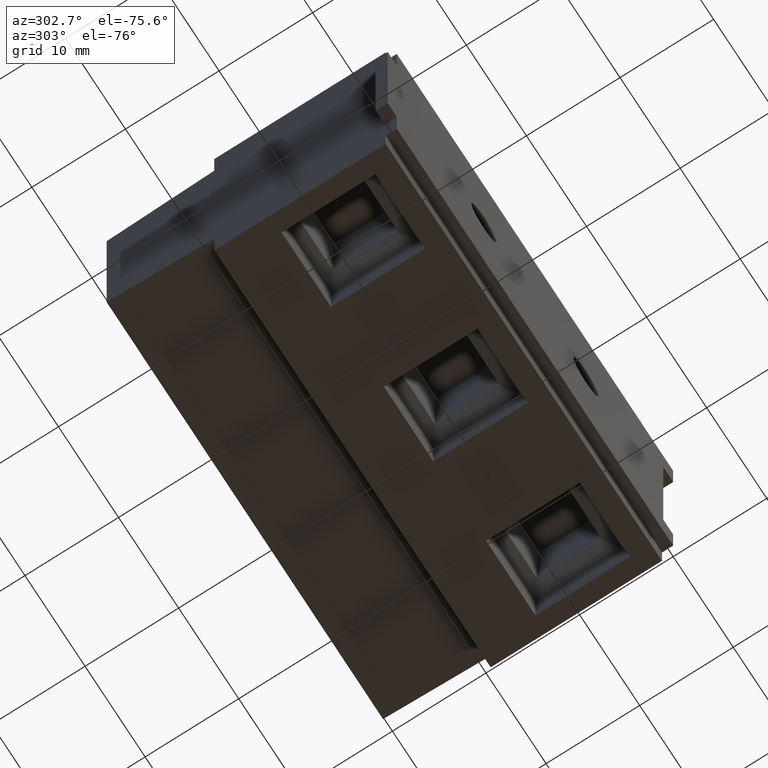
[diagram: clean part render]
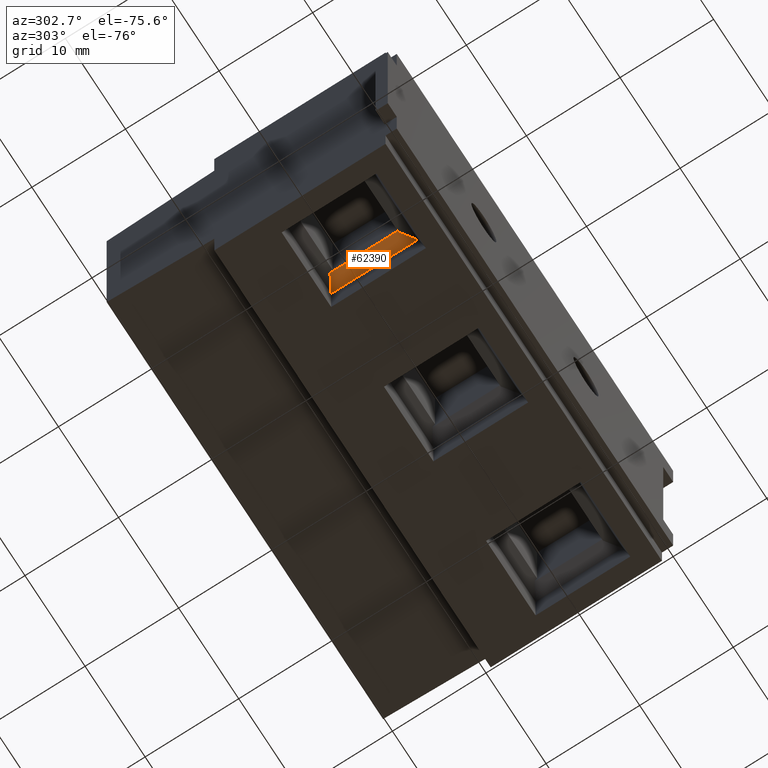
[diagram: same view with one face highlighted and labeled with its STEP entity id]
A machine part, auxiliary view. The second image highlights one B-rep face of the part: STEP entity #62390.
In plain terms, the highlighted planar face has unit normal (-0.7071, 0, -0.7071).
Its self-contained STEP definition (entity closure, byte-faithful):
#60680=CARTESIAN_POINT('',(-208.459574468087,112.275531914894,
-4.22499999999998));
#60690=DIRECTION('',(0.577350269189626,0.577350269189626,
0.577350269189626));
#60700=VECTOR('',#60690,1.);
#60710=LINE('',#60680,#60700);
#60720=CARTESIAN_POINT('',(-195.409574468087,125.325531914894,
8.82500000000001));
#60730=VERTEX_POINT('',#60720);
#60740=CARTESIAN_POINT('',(-194.134574468087,126.600531914894,10.1));
#60750=VERTEX_POINT('',#60740);
#60760=EDGE_CURVE('',#60730,#60750,#60710,.T.);
#61650=CARTESIAN_POINT('',(-195.409574468087,125.225531914894,
8.72500000000001));
#61660=VERTEX_POINT('',#61650);
#61690=CARTESIAN_POINT('',(-206.409574468087,125.225531914894,
8.72500000000001));
#61700=DIRECTION('',(1.,0.,0.));
#61710=VECTOR('',#61700,1.);
#61720=LINE('',#61690,#61710);
#61730=CARTESIAN_POINT('',(-202.645743445212,125.225531914894,
8.72500000000001));
#61740=VERTEX_POINT('',#61730);
#61750=EDGE_CURVE('',#61740,#61660,#61720,.T.);
#62020=CARTESIAN_POINT('',(-203.409574468087,125.225531914894,
8.72500000000001));
#62030=DIRECTION('',(0.,0.707106781186548,-0.707106781186548));
#62040=DIRECTION('',(-0.,-0.707106781186548,-0.707106781186548));
#62050=AXIS2_PLACEMENT_3D('',#62020,#62030,#62040);
#62060=PLANE('',#62050);
#62070=CARTESIAN_POINT('',(-208.459574468087,126.600531914894,10.1));
#62080=DIRECTION('',(1.,0.,0.));
#62090=VECTOR('',#62080,1.);
#62100=LINE('',#62070,#62090);
#62110=CARTESIAN_POINT('',(-203.409574468087,126.600531914894,10.1));
#62120=VERTEX_POINT('',#62110);
#62130=EDGE_CURVE('',#62120,#60750,#62100,.T.);
#62140=ORIENTED_EDGE('',*,*,#62130,.T.);
#62150=CARTESIAN_POINT('',(-203.409574468087,131.425531914894,14.925));
#62160=DIRECTION('',(-0.,-0.707106781186548,-0.707106781186548));
#62170=VECTOR('',#62160,1.);
#62180=LINE('',#62150,#62170);
#62190=CARTESIAN_POINT('',(-203.409574468087,126.548526054911,
10.0479941400173));
#62200=VERTEX_POINT('',#62190);
#62210=EDGE_CURVE('',#62120,#62200,#62180,.T.);
#62220=ORIENTED_EDGE('',*,*,#62210,.F.);
#62230=CARTESIAN_POINT('',(-196.150552916829,113.975531914894,
-2.52499999999999));
#62240=DIRECTION('',(0.377964473009227,-0.654653670707977,
-0.654653670707977));
#62250=VECTOR('',#62240,1.);
#62260=LINE('',#62230,#62250);
#62270=EDGE_CURVE('',#62200,#61740,#62260,.T.);
#62280=ORIENTED_EDGE('',*,*,#62270,.F.);
#62290=ORIENTED_EDGE('',*,*,#61750,.F.);
#62300=CARTESIAN_POINT('',(-195.409574468087,131.425531914894,14.925));
#62310=DIRECTION('',(-0.,-0.707106781186548,-0.707106781186548));
#62320=VECTOR('',#62310,1.);
#62330=LINE('',#62300,#62320);
#62340=EDGE_CURVE('',#60730,#61660,#62330,.T.);
#62350=ORIENTED_EDGE('',*,*,#62340,.T.);
#62360=ORIENTED_EDGE('',*,*,#60760,.F.);
#62370=EDGE_LOOP('',(#62360,#62350,#62290,#62280,#62220,#62140));
#62380=FACE_OUTER_BOUND('',#62370,.T.);
#62390=ADVANCED_FACE('',(#62380),#62060,.T.);